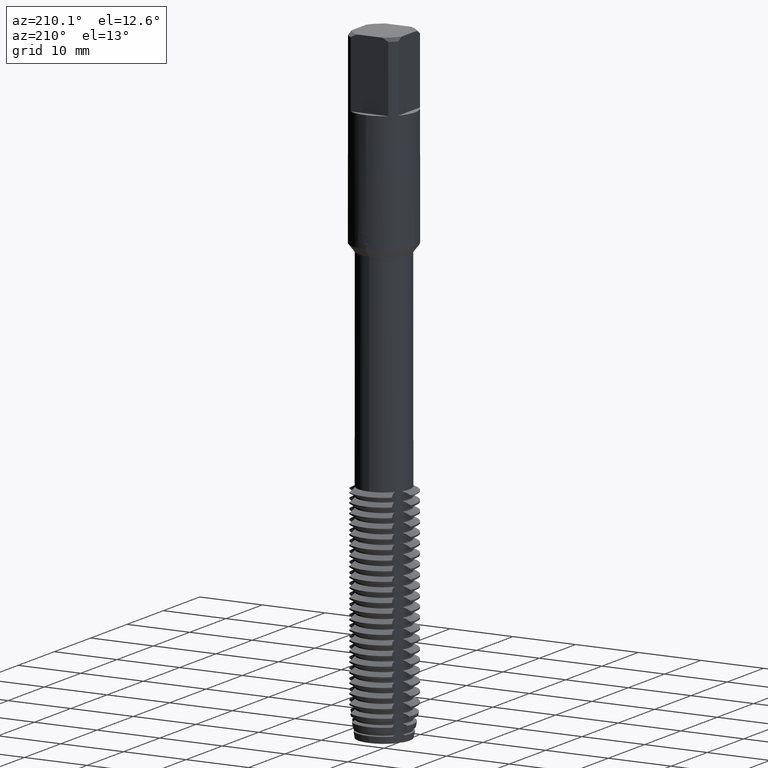
[diagram: clean part render]
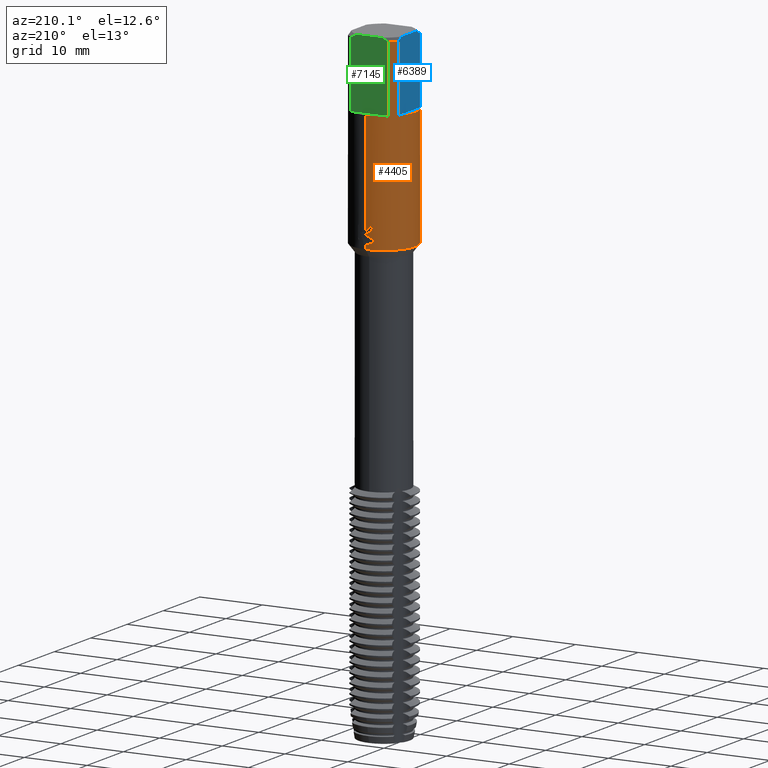
[diagram: same view with three faces highlighted in distinct colors, each labeled with its STEP entity id]
A machine part, auxiliary view with three faces highlighted in distinct colors.
Their STEP definitions:

[orange] entity #4405 — the highlighted cylindrical surface (edge-blend (fillet) strip) has radius 5 mm, axis along (-0, -0, 1).
#2801=EDGE_CURVE('',#7179,#7195,#8342,.T.);
#2815=EDGE_CURVE('',#3433,#6113,#8358,.T.);
#3433=VERTEX_POINT('',#9031);
#3437=VERTEX_POINT('',#9035);
#3545=EDGE_CURVE('',#7649,#6807,#9150,.T.);
#3731=EDGE_CURVE('',#4303,#3433,#9350,.T.);
#3875=VERTEX_POINT('',#9509);
#3921=VERTEX_POINT('',#9563);
#3947=VERTEX_POINT('',#9594);
#4021=EDGE_CURVE('',#7195,#6033,#9673,.T.);
#4031=EDGE_CURVE('',#7989,#6159,#9683,.T.);
#4269=EDGE_CURVE('',#3921,#3437,#9943,.T.);
#4303=VERTEX_POINT('',#9980);
#4405=ADVANCED_FACE('',(#10094),#10095,.T.);
#4445=VERTEX_POINT('',#10136);
#4507=VERTEX_POINT('',#10202);
#4557=EDGE_CURVE('',#6807,#3947,#10257,.T.);
#4783=EDGE_CURVE('',#3437,#7989,#10506,.T.);
#5311=EDGE_CURVE('',#3875,#6311,#11085,.T.);
#5965=VERTEX_POINT('',#11804);
#6033=VERTEX_POINT('',#11876);
#6035=EDGE_CURVE('',#7179,#6159,#11878,.T.);
#6113=VERTEX_POINT('',#11959);
#6159=VERTEX_POINT('',#12008);
#6211=VERTEX_POINT('',#12063);
#6311=VERTEX_POINT('',#12168);
#6401=VERTEX_POINT('',#12267);
#6799=EDGE_CURVE('',#6211,#3921,#12707,.T.);
#6807=VERTEX_POINT('',#12716);
#6893=EDGE_CURVE('',#6401,#5965,#12811,.T.);
#6905=EDGE_CURVE('',#5965,#4445,#12825,.T.);
#7179=VERTEX_POINT('',#13123);
#7195=VERTEX_POINT('',#13139);
#7303=EDGE_CURVE('',#6311,#4507,#13254,.T.);
#7649=VERTEX_POINT('',#13624);
#7691=EDGE_CURVE('',#6033,#6401,#13671,.T.);
#7741=EDGE_CURVE('',#6113,#3875,#13723,.T.);
#7989=VERTEX_POINT('',#13994);
#8067=EDGE_CURVE('',#3947,#4303,#14080,.T.);
#8131=EDGE_CURVE('',#4507,#6211,#14152,.T.);
#8177=EDGE_CURVE('',#4445,#7649,#14205,.T.);
#8342=LINE('',#14373,#14374);
#8358=LINE('',#14401,#14402);
#9031=CARTESIAN_POINT('',(-6.12303176911189E-016,5.0,-11.0));
#9035=CARTESIAN_POINT('',(-1.337052752443,4.81791344226778,-28.6220803908795));
#9150=LINE('',#15729,#15730);
#9350=CIRCLE('',#16099,5.0);
#9509=CARTESIAN_POINT('',(-0.486378944383045,4.9762873231417,-26.8932837483006));
#9563=CARTESIAN_POINT('',(-6.12289135521443E-016,5.0,-27.9628911336578));
#9594=CARTESIAN_POINT('',(-3.0,4.0,-0.5));
#9673=CIRCLE('',#16652,5.0);
#9683=LINE('',#16666,#16667);
#9943=ELLIPSE('',#17148,5.5746421602143,5.0);
#9980=CARTESIAN_POINT('',(-3.0,4.0,-11.0));
#10094=FACE_OUTER_BOUND('',#17377,.T.);
#10095=CYLINDRICAL_SURFACE('',#17378,5.0);
#10136=CARTESIAN_POINT('',(-4.0,-3.0,-11.0));
#10202=CARTESIAN_POINT('',(-1.0350734039088,4.89168918151191,-26.5671221986971));
#10257=CIRCLE('',#17634,5.0);
#10506=B_SPLINE_CURVE_WITH_KNOTS('',3,(#18053,#18054,#18055,#18056,#18057,#18058,#18059,#18060,#18061,#18062,#18063,#18064,#18065,#18066,#18067,#18068),.UNSPECIFIED.,.F.,.F.,(4,2,2,2,2,2,2,4),(5.87517564836087,6.18447732711524,6.49384941721167,6.80322150730809,7.11259359740452,7.42196568750094,7.73087791711931,8.03979014673768),.UNSPECIFIED.);
#11085=B_SPLINE_CURVE_WITH_KNOTS('',3,(#18995,#18996,#18997,#18998,#18999,#19000,#19001,#19002,#19003,#19004,#19005,#19006,#19007,#19008,#19009,#19010,#19011,#19012,#19013,#19014,#19015,#19016,#19017,#19018,#19019,#19020,#19021),.UNSPECIFIED.,.F.,.F.,(4,2,3,2,2,2,2,2,2,2,2,2,4),(-0.542486104801742,-0.271243052400871,0.0,0.271243052400871,0.542486104801742,0.814298814936949,1.08611152507216,1.35696845964794,1.62782539422372,1.89896433698446,2.1701032797452,2.44124222250595,2.71238116526669),.UNSPECIFIED.);
#11804=CARTESIAN_POINT('',(-4.0,-3.0,-0.5));
#11876=CARTESIAN_POINT('',(-3.0,-4.0,-11.0));
#11878=CIRCLE('',#20433,5.0);
#11959=CARTESIAN_POINT('',(2.28519599946872E-015,5.0,-27.2732688117743));
#12008=CARTESIAN_POINT('',(0.0,5.0,-30.0));
#12063=CARTESIAN_POINT('',(2.35719168458961E-016,5.0,-27.7500801551881));
#12168=CARTESIAN_POINT('',(-0.562333990228013,4.96827741611056,-26.5671221986971));
#12267=CARTESIAN_POINT('',(-3.0,-4.0,-0.5));
#12707=LINE('',#21964,#21965);
#12716=CARTESIAN_POINT('',(-4.0,3.0,-0.5));
#12811=CIRCLE('',#22153,5.0);
#12825=LINE('',#22172,#22173);
#13123=CARTESIAN_POINT('',(6.12303176911189E-016,-5.0,-30.0));
#13139=CARTESIAN_POINT('',(6.12303176911189E-016,-5.0,-11.0));
#13254=CIRCLE('',#22872,5.0);
#13624=CARTESIAN_POINT('',(-4.0,3.0,-11.0));
#13671=LINE('',#23579,#23580);
#13723=B_SPLINE_CURVE_WITH_KNOTS('',3,(#23691,#23692,#23693,#23694,#23695,#23696,#23697,#23698,#23699,#23700,#23701,#23702,#23703,#23704,#23705,#23706,#23707,#23708,#23709,#23710,#23711,#23712,#23713,#23714,#23715,#23716,#23717),.UNSPECIFIED.,.F.,.F.,(4,2,3,2,2,2,2,2,2,2,2,2,4),(-0.542486104801742,-0.271243052400871,0.0,0.271243052400871,0.542486104801742,0.814298814936949,1.08611152507216,1.35696845964794,1.62782539422372,1.89896433698446,2.1701032797452,2.44124222250595,2.71238116526669),.UNSPECIFIED.);
#13994=CARTESIAN_POINT('',(-1.78283372566562E-015,5.0,-29.2810253601033));
#14080=LINE('',#24308,#24309);
#14152=B_SPLINE_CURVE_WITH_KNOTS('',3,(#24435,#24436,#24437,#24438,#24439,#24440,#24441,#24442,#24443,#24444,#24445,#24446,#24447,#24448),.UNSPECIFIED.,.F.,.F.,(4,2,2,2,2,2,4),(3.1333306003147,3.58067338374496,4.02765422711004,4.47463507047513,4.92142505816889,5.36821504586264,5.81665426600987),.UNSPECIFIED.);
#14205=CIRCLE('',#24528,5.0);
#14373=CARTESIAN_POINT('',(6.12303176911189E-016,-5.0,-15.25));
#14374=VECTOR('',#24820,1.0);
#14401=CARTESIAN_POINT('',(-6.12303176911189E-016,5.0,-15.25));
#14402=VECTOR('',#25027,1.0);
#15729=CARTESIAN_POINT('',(-4.0,3.0,-5.75));
#15730=VECTOR('',#25863,1.0);
#16099=AXIS2_PLACEMENT_3D('',#26066,#26067,#26068);
#16652=AXIS2_PLACEMENT_3D('',#26441,#26442,#26443);
#16666=CARTESIAN_POINT('',(-6.12303176911189E-016,5.0,-15.25));
#16667=VECTOR('',#26448,1.0);
#17148=AXIS2_PLACEMENT_3D('',#26711,#26712,#26713);
#17377=EDGE_LOOP('',(#26890,#26891,#26892,#26893,#26894,#26895,#26896,#26897,#26898,#26899,#26900,#26901,#26902,#26903,#26904,#26905,#26906,#26907,#26908,#26909));
#17378=AXIS2_PLACEMENT_3D('',#26910,#26911,#26912);
#17634=AXIS2_PLACEMENT_3D('',#27048,#27049,#27050);
#18053=CARTESIAN_POINT('',(-1.37919625933141,4.80601890115366,-28.5624404256203));
#18054=CARTESIAN_POINT('',(-1.31957521374487,4.82312851403775,-28.6509601597598));
#18055=CARTESIAN_POINT('',(-1.25205684175205,4.84126211135571,-28.7321654513649));
#18056=CARTESIAN_POINT('',(-1.10836495207318,4.87616599259845,-28.8759115514073));
#18057=CARTESIAN_POINT('',(-1.0271524301646,4.89418890879516,-28.943486795378));
#18058=CARTESIAN_POINT('',(-0.850055905397218,4.9280353232664,-29.0628453591325));
#18059=CARTESIAN_POINT('',(-0.754172188044362,4.94382885968066,-29.1146375967458));
#18060=CARTESIAN_POINT('',(-0.553725999780851,4.97027232652294,-29.1980281920328));
#18061=CARTESIAN_POINT('',(-0.448990720596503,4.98092390938096,-29.2296924022892));
#18062=CARTESIAN_POINT('',(-0.237871423561602,4.99545922254228,-29.2713202804398));
#18063=CARTESIAN_POINT('',(-0.13148454027928,4.99933459384723,-29.2812723335086));
#18064=CARTESIAN_POINT('',(0.0746069172274577,5.00050365281921,-29.2812723335086));
#18065=CARTESIAN_POINT('',(0.180879006433094,4.99784409598263,-29.271349312763));
#18066=CARTESIAN_POINT('',(0.391840688075153,4.98574204084828,-29.2298000876985));
#18067=CARTESIAN_POINT('',(0.496532945230266,4.97630796240248,-29.1981849619546));
#18068=CARTESIAN_POINT('',(0.596736821506943,4.96426280185264,-29.1565357940623));
#18995=CARTESIAN_POINT('',(0.665122770091171,4.95556371169883,-26.0635963457478));
#18996=CARTESIAN_POINT('',(0.728735196954596,4.94702581852882,-26.1272777273236));
#18997=CARTESIAN_POINT('',(0.783964166103463,4.93829748078097,-26.2079436035979));
#18998=CARTESIAN_POINT('',(0.857301933462897,4.92609533329604,-26.3849114173306));
#18999=CARTESIAN_POINT('',(0.875400981188567,4.92277087849253,-26.4812276617865));
#19000=CARTESIAN_POINT('',(0.875400981188567,4.92277087849253,-26.5716420125868));
#19001=CARTESIAN_POINT('',(0.875400981188567,4.92277087849253,-26.6620563633871));
#19002=CARTESIAN_POINT('',(0.857301933462898,4.92609533329604,-26.7583726078429));
#19003=CARTESIAN_POINT('',(0.783964166103462,4.93829748078097,-26.9353404215757));
#19004=CARTESIAN_POINT('',(0.728735196954596,4.94702581852882,-27.01600629785));
#19005=CARTESIAN_POINT('',(0.601376746032751,4.96411953593411,-27.1435028030135));
#19006=CARTESIAN_POINT('',(0.520641197115553,4.97361399538109,-27.1988552844728));
#19007=CARTESIAN_POINT('',(0.343503822480856,4.98897870858442,-27.2723670116056));
#19008=CARTESIAN_POINT('',(0.247086219827462,4.9947129574863,-27.2905166027747));
#19009=CARTESIAN_POINT('',(0.0662849978754682,5.00037576555244,-27.2905166027747));
#19010=CARTESIAN_POINT('',(-0.0299853354073722,5.00069421157823,-27.2724810356509));
#19011=CARTESIAN_POINT('',(-0.207042529230842,4.99649628332508,-27.1991606175219));
#19012=CARTESIAN_POINT('',(-0.287834149954027,4.99211780487336,-27.1438794313977));
#19013=CARTESIAN_POINT('',(-0.415469449620835,4.98311973872716,-27.0163325263823));
#19014=CARTESIAN_POINT('',(-0.470822894462523,4.97792007270922,-26.9355206130663));
#19015=CARTESIAN_POINT('',(-0.544264412763407,4.97042641093864,-26.7583690868499));
#19016=CARTESIAN_POINT('',(-0.562348199187247,4.96827580785033,-26.6620216601737));
#19017=CARTESIAN_POINT('',(-0.562348199187247,4.96827580785033,-26.4812623649999));
#19018=CARTESIAN_POINT('',(-0.544264412763407,4.97042641093864,-26.3849149383237));
#19019=CARTESIAN_POINT('',(-0.470822894462523,4.97792007270922,-26.2077634121072));
#19020=CARTESIAN_POINT('',(-0.415469449620835,4.98311973872716,-26.1269514987913));
#19021=CARTESIAN_POINT('',(-0.351618594554052,4.98762111271133,-26.0631448640467));
#20433=AXIS2_PLACEMENT_3D('',#29029,#29030,#29031);
#21964=CARTESIAN_POINT('',(-6.12303176911189E-016,5.0,-15.25));
#21965=VECTOR('',#29874,1.0);
#22153=AXIS2_PLACEMENT_3D('',#30176,#30177,#30178);
#22172=CARTESIAN_POINT('',(-4.0,-3.0,-5.75));
#22173=VECTOR('',#30199,1.0);
#22872=AXIS2_PLACEMENT_3D('',#30618,#30619,#30620);
#23579=CARTESIAN_POINT('',(-3.0,-4.0,-5.75));
#23580=VECTOR('',#31038,1.0);
#23691=CARTESIAN_POINT('',(0.665122770091171,4.95556371169883,-26.0635963457478));
#23692=CARTESIAN_POINT('',(0.728735196954596,4.94702581852882,-26.1272777273236));
#23693=CARTESIAN_POINT('',(0.783964166103463,4.93829748078097,-26.2079436035979));
#23694=CARTESIAN_POINT('',(0.857301933462897,4.92609533329604,-26.3849114173306));
#23695=CARTESIAN_POINT('',(0.875400981188567,4.92277087849253,-26.4812276617865));
#23696=CARTESIAN_POINT('',(0.875400981188567,4.92277087849253,-26.5716420125868));
#23697=CARTESIAN_POINT('',(0.875400981188567,4.92277087849253,-26.6620563633871));
#23698=CARTESIAN_POINT('',(0.857301933462898,4.92609533329604,-26.7583726078429));
#23699=CARTESIAN_POINT('',(0.783964166103462,4.93829748078097,-26.9353404215757));
#23700=CARTESIAN_POINT('',(0.728735196954596,4.94702581852882,-27.01600629785));
#23701=CARTESIAN_POINT('',(0.601376746032751,4.96411953593411,-27.1435028030135));
#23702=CARTESIAN_POINT('',(0.520641197115553,4.97361399538109,-27.1988552844728));
#23703=CARTESIAN_POINT('',(0.343503822480856,4.98897870858442,-27.2723670116056));
#23704=CARTESIAN_POINT('',(0.247086219827462,4.9947129574863,-27.2905166027747));
#23705=CARTESIAN_POINT('',(0.0662849978754682,5.00037576555244,-27.2905166027747));
#23706=CARTESIAN_POINT('',(-0.0299853354073722,5.00069421157823,-27.2724810356509));
#23707=CARTESIAN_POINT('',(-0.207042529230842,4.99649628332508,-27.1991606175219));
#23708=CARTESIAN_POINT('',(-0.287834149954027,4.99211780487336,-27.1438794313977));
#23709=CARTESIAN_POINT('',(-0.415469449620835,4.98311973872716,-27.0163325263823));
#23710=CARTESIAN_POINT('',(-0.470822894462523,4.97792007270922,-26.9355206130663));
#23711=CARTESIAN_POINT('',(-0.544264412763407,4.97042641093864,-26.7583690868499));
#23712=CARTESIAN_POINT('',(-0.562348199187247,4.96827580785033,-26.6620216601737));
#23713=CARTESIAN_POINT('',(-0.562348199187247,4.96827580785033,-26.4812623649999));
#23714=CARTESIAN_POINT('',(-0.544264412763407,4.97042641093864,-26.3849149383237));
#23715=CARTESIAN_POINT('',(-0.470822894462523,4.97792007270922,-26.2077634121072));
#23716=CARTESIAN_POINT('',(-0.415469449620835,4.98311973872716,-26.1269514987913));
#23717=CARTESIAN_POINT('',(-0.351618594554052,4.98762111271133,-26.0631448640467));
#24308=CARTESIAN_POINT('',(-3.0,4.0,-5.75));
#24309=VECTOR('',#31436,1.0);
#24435=CARTESIAN_POINT('',(-0.944692658009555,4.90994458032907,-26.1226918261735));
#24436=CARTESIAN_POINT('',(-1.00520381961469,4.89830199881157,-26.2684504386447));
#24437=CARTESIAN_POINT('',(-1.03510901790186,4.89168164551397,-26.4271875995894));
#24438=CARTESIAN_POINT('',(-1.03510901790186,4.89168164551397,-26.7252954751878));
#24439=CARTESIAN_POINT('',(-1.00525172214321,4.89829102509105,-26.8839130074321));
#24440=CARTESIAN_POINT('',(-0.884408649304672,4.9215452098255,-27.1752479490985));
#24441=CARTESIAN_POINT('',(-0.793445628920689,4.93777782517221,-27.3080075507732));
#24442=CARTESIAN_POINT('',(-0.583792707837636,4.96692886234793,-27.5176604718563));
#24443=CARTESIAN_POINT('',(-0.450983500633548,4.98175930367071,-27.6086781968276));
#24444=CARTESIAN_POINT('',(-0.159556425547811,4.99958534514983,-27.7295436244164));
#24445=CARTESIAN_POINT('',(-0.000907024156325736,5.00221744039434,-27.7593686300866));
#24446=CARTESIAN_POINT('',(0.297372030464208,4.99338703368593,-27.7593686300866));
#24447=CARTESIAN_POINT('',(0.456130497790801,4.98131090789155,-27.7293567789724));
#24448=CARTESIAN_POINT('',(0.601738882443865,4.96365896465049,-27.668881224397));
#24528=AXIS2_PLACEMENT_3D('',#31599,#31600,#31601);
#24820=DIRECTION('',(-0.0,-0.0,1.0));
#25027=DIRECTION('',(0.0,0.0,-1.0));
#25863=DIRECTION('',(-0.0,-0.0,1.0));
#26066=CARTESIAN_POINT('',(0.0,0.0,-11.0));
#26067=DIRECTION('',(0.0,0.0,-1.0));
#26068=DIRECTION('',(0.0,1.0,0.0));
#26441=CARTESIAN_POINT('',(0.0,0.0,-11.0));
#26442=DIRECTION('',(0.0,0.0,-1.0));
#26443=DIRECTION('',(0.0,1.0,0.0));
#26448=DIRECTION('',(0.0,0.0,-1.0));
#26711=CARTESIAN_POINT('',(0.0,0.0,-27.9628911336578));
#26712=DIRECTION('',(-0.442195774284071,0.0,0.896918556617774));
#26713=DIRECTION('',(0.896918556617774,-0.0,0.442195774284071));
#26890=ORIENTED_EDGE('',*,*,#2815,.T.);
#26891=ORIENTED_EDGE('',*,*,#7741,.T.);
#26892=ORIENTED_EDGE('',*,*,#5311,.T.);
#26893=ORIENTED_EDGE('',*,*,#7303,.T.);
#26894=ORIENTED_EDGE('',*,*,#8131,.T.);
#26895=ORIENTED_EDGE('',*,*,#6799,.T.);
#26896=ORIENTED_EDGE('',*,*,#4269,.T.);
#26897=ORIENTED_EDGE('',*,*,#4783,.T.);
#26898=ORIENTED_EDGE('',*,*,#4031,.T.);
#26899=ORIENTED_EDGE('',*,*,#6035,.F.);
#26900=ORIENTED_EDGE('',*,*,#2801,.T.);
#26901=ORIENTED_EDGE('',*,*,#4021,.T.);
#26902=ORIENTED_EDGE('',*,*,#7691,.T.);
#26903=ORIENTED_EDGE('',*,*,#6893,.T.);
#26904=ORIENTED_EDGE('',*,*,#6905,.T.);
#26905=ORIENTED_EDGE('',*,*,#8177,.T.);
#26906=ORIENTED_EDGE('',*,*,#3545,.T.);
#26907=ORIENTED_EDGE('',*,*,#4557,.T.);
#26908=ORIENTED_EDGE('',*,*,#8067,.T.);
#26909=ORIENTED_EDGE('',*,*,#3731,.T.);
#26910=CARTESIAN_POINT('',(0.0,0.0,-15.25));
#26911=DIRECTION('',(-0.0,-0.0,1.0));
#26912=DIRECTION('',(0.0,1.0,0.0));
#27048=CARTESIAN_POINT('',(0.0,0.0,-0.5));
#27049=DIRECTION('',(0.0,0.0,-1.0));
#27050=DIRECTION('',(0.0,1.0,0.0));
#29029=CARTESIAN_POINT('',(0.0,0.0,-30.0));
#29030=DIRECTION('',(0.0,0.0,-1.0));
#29031=DIRECTION('',(0.0,1.0,0.0));
#29874=DIRECTION('',(0.0,0.0,-1.0));
#30176=CARTESIAN_POINT('',(0.0,0.0,-0.5));
#30177=DIRECTION('',(0.0,0.0,-1.0));
#30178=DIRECTION('',(0.0,1.0,0.0));
#30199=DIRECTION('',(0.0,0.0,-1.0));
#30618=CARTESIAN_POINT('',(0.0,0.0,-26.5671221986971));
#30619=DIRECTION('',(0.0,-0.0,1.0));
#30620=DIRECTION('',(0.0,1.0,0.0));
#31038=DIRECTION('',(-0.0,-0.0,1.0));
#31436=DIRECTION('',(0.0,0.0,-1.0));
#31599=CARTESIAN_POINT('',(0.0,0.0,-11.0));
#31600=DIRECTION('',(0.0,0.0,-1.0));
#31601=DIRECTION('',(0.0,1.0,0.0));

[blue] entity #6389 — the highlighted planar face has unit normal (-1, 0, 0).
#3545=EDGE_CURVE('',#7649,#6807,#9150,.T.);
#3701=EDGE_CURVE('',#4445,#7649,#9319,.T.);
#4011=EDGE_CURVE('',#7307,#5965,#9662,.T.);
#4445=VERTEX_POINT('',#10136);
#5429=EDGE_CURVE('',#8129,#7307,#11214,.T.);
#5965=VERTEX_POINT('',#11804);
#6389=ADVANCED_FACE('',(#12253),#12254,.T.);
#6807=VERTEX_POINT('',#12716);
#6905=EDGE_CURVE('',#5965,#4445,#12825,.T.);
#7227=EDGE_CURVE('',#6807,#8129,#13172,.T.);
#7307=VERTEX_POINT('',#13258);
#7649=VERTEX_POINT('',#13624);
#8129=VERTEX_POINT('',#14150);
#9150=LINE('',#15729,#15730);
#9319=LINE('',#16030,#16031);
#9662=(B_SPLINE_CURVE(2,(#16632,#16633,#16634),.UNSPECIFIED.,.F.,.F.)B_SPLINE_CURVE_WITH_KNOTS((3,3),(0.0,1.06374198224989),.UNSPECIFIED.)RATIONAL_B_SPLINE_CURVE((1.0,1.00491513263524,1.0))BOUNDED_CURVE()REPRESENTATION_ITEM('')GEOMETRIC_REPRESENTATION_ITEM()CURVE());
#10136=CARTESIAN_POINT('',(-4.0,-3.0,-11.0));
#11214=LINE('',#19228,#19229);
#11804=CARTESIAN_POINT('',(-4.0,-3.0,-0.5));
#12253=FACE_OUTER_BOUND('',#21152,.T.);
#12254=PLANE('',#21153);
#12716=CARTESIAN_POINT('',(-4.0,3.0,-0.5));
#12825=LINE('',#22172,#22173);
#13172=(B_SPLINE_CURVE(2,(#22732,#22733,#22734),.UNSPECIFIED.,.F.,.F.)B_SPLINE_CURVE_WITH_KNOTS((3,3),(0.0,1.06374198224989),.UNSPECIFIED.)RATIONAL_B_SPLINE_CURVE((1.0,1.00491513263524,1.0))BOUNDED_CURVE()REPRESENTATION_ITEM('')GEOMETRIC_REPRESENTATION_ITEM()CURVE());
#13258=CARTESIAN_POINT('',(-4.0,-2.06155281280883,0.0));
#13624=CARTESIAN_POINT('',(-4.0,3.0,-11.0));
#14150=CARTESIAN_POINT('',(-4.0,2.06155281280883,0.0));
#15729=CARTESIAN_POINT('',(-4.0,3.0,-5.75));
#15730=VECTOR('',#25863,1.0);
#16030=CARTESIAN_POINT('',(-4.0,0.0,-11.0));
#16031=VECTOR('',#26037,1.0);
#16632=CARTESIAN_POINT('',(-4.0,-2.06155281280883,5.55111512312578E-017));
#16633=CARTESIAN_POINT('',(-4.0,-2.50608042779412,-0.203648256676475));
#16634=CARTESIAN_POINT('',(-4.0,-3.0,-0.5));
#19228=CARTESIAN_POINT('',(-4.0,1.125,0.0));
#19229=VECTOR('',#28284,1.0);
#21152=EDGE_LOOP('',(#29351,#29352,#29353,#29354,#29355,#29356));
#21153=AXIS2_PLACEMENT_3D('',#29357,#29358,#29359);
#22172=CARTESIAN_POINT('',(-4.0,-3.0,-5.75));
#22173=VECTOR('',#30199,1.0);
#22732=CARTESIAN_POINT('',(-4.0,3.0,-0.5));
#22733=CARTESIAN_POINT('',(-4.0,2.50608042779412,-0.203648256676475));
#22734=CARTESIAN_POINT('',(-4.0,2.06155281280883,5.55111512312578E-017));
#25863=DIRECTION('',(-0.0,-0.0,1.0));
#26037=DIRECTION('',(0.0,1.0,0.0));
#28284=DIRECTION('',(-0.0,-1.0,0.0));
#29351=ORIENTED_EDGE('',*,*,#3545,.F.);
#29352=ORIENTED_EDGE('',*,*,#3701,.F.);
#29353=ORIENTED_EDGE('',*,*,#6905,.F.);
#29354=ORIENTED_EDGE('',*,*,#4011,.F.);
#29355=ORIENTED_EDGE('',*,*,#5429,.F.);
#29356=ORIENTED_EDGE('',*,*,#7227,.F.);
#29357=CARTESIAN_POINT('',(-4.0,0.0,-5.0));
#29358=DIRECTION('',(-1.0,0.0,0.0));
#29359=DIRECTION('',(0.0,0.0,-1.0));
#30199=DIRECTION('',(0.0,0.0,-1.0));

[green] entity #7145 — the highlighted planar face has unit normal (0, 1, 0).
#3439=EDGE_CURVE('',#4439,#5827,#9037,.T.);
#3577=EDGE_CURVE('',#5827,#7891,#9183,.T.);
#3947=VERTEX_POINT('',#9594);
#4303=VERTEX_POINT('',#9980);
#4437=EDGE_CURVE('',#7935,#4439,#10128,.T.);
#4439=VERTEX_POINT('',#10130);
#5147=EDGE_CURVE('',#4303,#7935,#10903,.T.);
#5827=VERTEX_POINT('',#11647);
#7145=ADVANCED_FACE('',(#13084),#13085,.T.);
#7593=EDGE_CURVE('',#7891,#3947,#13564,.T.);
#7891=VERTEX_POINT('',#13890);
#7935=VERTEX_POINT('',#13939);
#8067=EDGE_CURVE('',#3947,#4303,#14080,.T.);
#9037=(B_SPLINE_CURVE(2,(#15527,#15528,#15529),.UNSPECIFIED.,.F.,.F.)B_SPLINE_CURVE_WITH_KNOTS((3,3),(0.0,1.06374198224989),.UNSPECIFIED.)RATIONAL_B_SPLINE_CURVE((1.0,1.00491513263524,1.0))BOUNDED_CURVE()REPRESENTATION_ITEM('')GEOMETRIC_REPRESENTATION_ITEM()CURVE());
#9183=LINE('',#15787,#15788);
#9594=CARTESIAN_POINT('',(-3.0,4.0,-0.5));
#9980=CARTESIAN_POINT('',(-3.0,4.0,-11.0));
#10128=LINE('',#17431,#17432);
#10130=CARTESIAN_POINT('',(3.0,4.0,-0.5));
#10903=LINE('',#18713,#18714);
#11647=CARTESIAN_POINT('',(2.06155281280883,4.0,0.0));
#13084=FACE_OUTER_BOUND('',#22600,.T.);
#13085=PLANE('',#22601);
#13564=(B_SPLINE_CURVE(2,(#23401,#23402,#23403),.UNSPECIFIED.,.F.,.F.)B_SPLINE_CURVE_WITH_KNOTS((3,3),(0.0,1.06374198224989),.UNSPECIFIED.)RATIONAL_B_SPLINE_CURVE((1.0,1.00491513263524,1.0))BOUNDED_CURVE()REPRESENTATION_ITEM('')GEOMETRIC_REPRESENTATION_ITEM()CURVE());
#13890=CARTESIAN_POINT('',(-2.06155281280883,4.0,0.0));
#13939=CARTESIAN_POINT('',(3.0,4.0,-11.0));
#14080=LINE('',#24308,#24309);
#15527=CARTESIAN_POINT('',(3.0,4.0,-0.5));
#15528=CARTESIAN_POINT('',(2.50608042779412,4.0,-0.203648256676475));
#15529=CARTESIAN_POINT('',(2.06155281280883,4.0,5.55111512312578E-017));
#15787=CARTESIAN_POINT('',(0.0,4.0,0.0));
#15788=VECTOR('',#25885,1.0);
#17431=CARTESIAN_POINT('',(3.0,4.0,-5.75));
#17432=VECTOR('',#26928,1.0);
#18713=CARTESIAN_POINT('',(0.0,4.0,-11.0));
#18714=VECTOR('',#27747,1.0);
#22600=EDGE_LOOP('',(#30462,#30463,#30464,#30465,#30466,#30467));
#22601=AXIS2_PLACEMENT_3D('',#30468,#30469,#30470);
#23401=CARTESIAN_POINT('',(-2.06155281280883,4.0,5.55111512312578E-017));
#23402=CARTESIAN_POINT('',(-2.50608042779412,4.0,-0.203648256676475));
#23403=CARTESIAN_POINT('',(-3.0,4.0,-0.5));
#24308=CARTESIAN_POINT('',(-3.0,4.0,-5.75));
#24309=VECTOR('',#31436,1.0);
#25885=DIRECTION('',(-1.0,0.0,0.0));
#26928=DIRECTION('',(-0.0,-0.0,1.0));
#27747=DIRECTION('',(1.0,0.0,0.0));
#30462=ORIENTED_EDGE('',*,*,#8067,.F.);
#30463=ORIENTED_EDGE('',*,*,#7593,.F.);
#30464=ORIENTED_EDGE('',*,*,#3577,.F.);
#30465=ORIENTED_EDGE('',*,*,#3439,.F.);
#30466=ORIENTED_EDGE('',*,*,#4437,.F.);
#30467=ORIENTED_EDGE('',*,*,#5147,.F.);
#30468=CARTESIAN_POINT('',(0.0,4.0,-5.0));
#30469=DIRECTION('',(0.0,1.0,0.0));
#30470=DIRECTION('',(0.0,0.0,-1.0));
#31436=DIRECTION('',(0.0,0.0,-1.0));